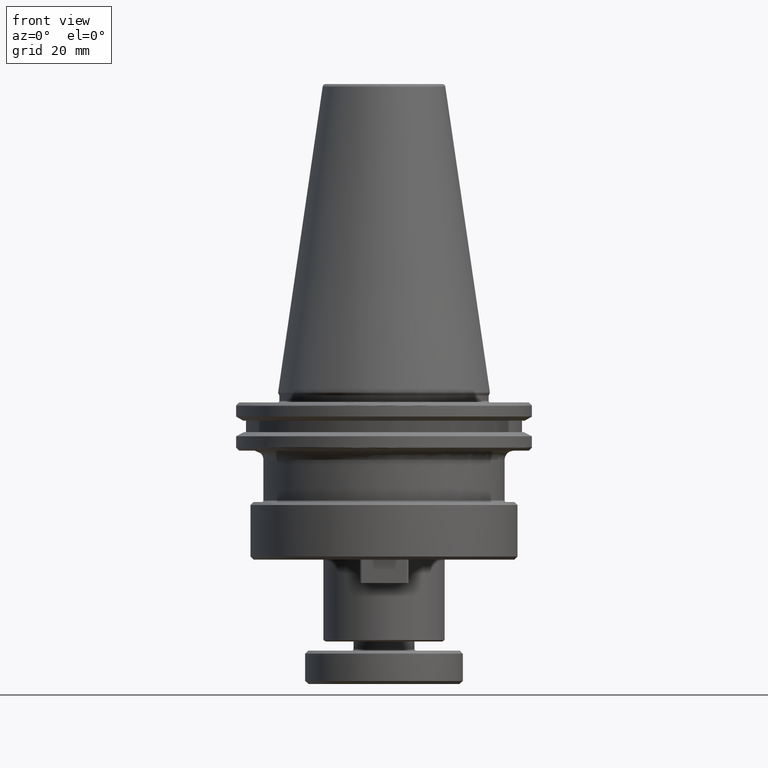
[diagram: clean part render]
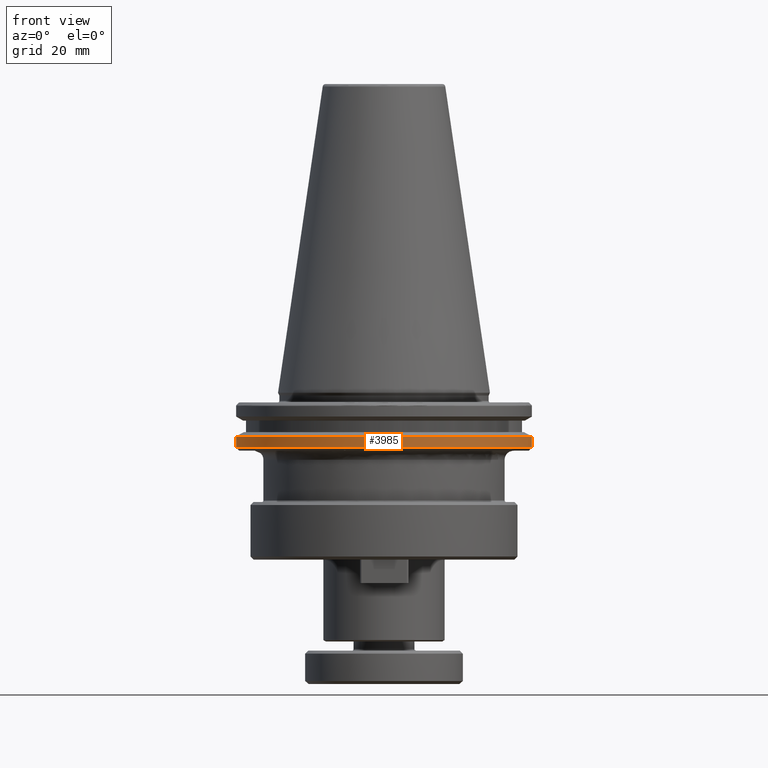
[diagram: same view with one face highlighted and labeled with its STEP entity id]
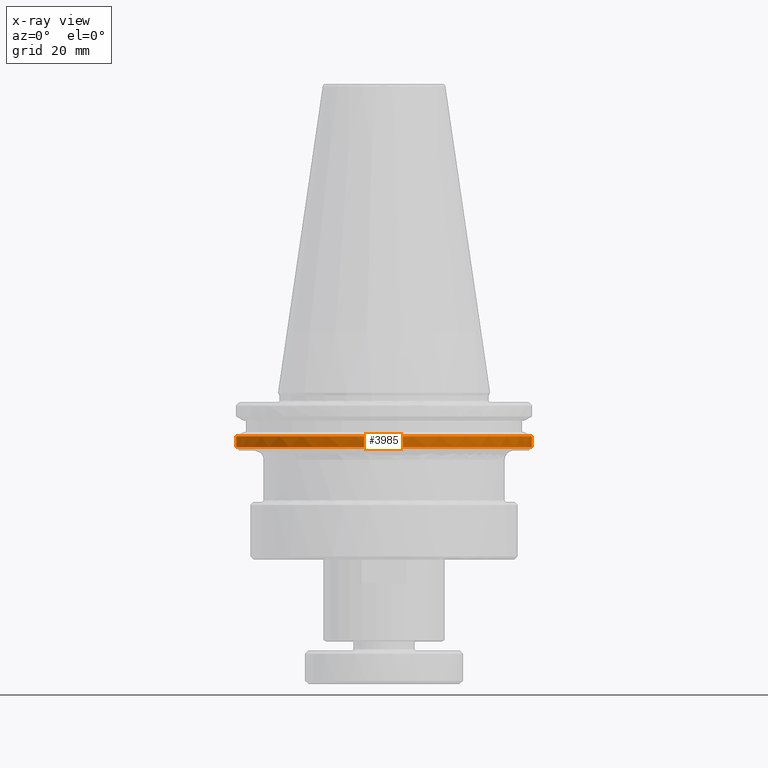
[diagram: x-ray of the same camera — body ghosted, the highlighted face saturated]
A machine part, front view. The second image highlights one B-rep face of the part: STEP entity #3985.
The next image is the same camera in x-ray: the body ghosted, the highlighted face saturated — about 0% of this face is hidden behind the body in this view.
In plain terms, the highlighted cylindrical surface (partial cylindrical patch) has radius 48.75 mm, axis along (0, 0, 1).
Its self-contained STEP definition (entity closure, byte-faithful):
#45 = CARTESIAN_POINT ( 'NONE',  ( 0.0000000000000000000, 0.0000000000000000000, -14.34759526419165900 ) ) ;
#61 = ORIENTED_EDGE ( 'NONE', *, *, #1311, .T. ) ;
#291 = CARTESIAN_POINT ( 'NONE',  ( 0.0000000000000000000, 0.0000000000000000000, -17.93431457505076300 ) ) ;
#308 = EDGE_CURVE ( 'NONE', #2898, #4080, #3354, .T. ) ;
#311 = AXIS2_PLACEMENT_3D ( 'NONE', #291, #365, #4728 ) ;
#357 = ORIENTED_EDGE ( 'NONE', *, *, #782, .F. ) ;
#365 = DIRECTION ( 'NONE',  ( 0.0000000000000000000, 0.0000000000000000000, 1.000000000000000000 ) ) ;
#401 = DIRECTION ( 'NONE',  ( 0.0000000000000000000, 0.0000000000000000000, 1.000000000000000000 ) ) ;
#699 = EDGE_CURVE ( 'NONE', #3615, #3207, #3245, .T. ) ;
#754 = CARTESIAN_POINT ( 'NONE',  ( -48.75000000000000000, 5.970153145843347100E-015, -17.93431457505076300 ) ) ;
#782 = EDGE_CURVE ( 'NONE', #4080, #3830, #4098, .T. ) ;
#882 = EDGE_CURVE ( 'NONE', #3207, #3188, #4361, .T. ) ;
#970 = AXIS2_PLACEMENT_3D ( 'NONE', #3433, #2746, #3072 ) ;
#1113 = ORIENTED_EDGE ( 'NONE', *, *, #882, .T. ) ;
#1158 = AXIS2_PLACEMENT_3D ( 'NONE', #2724, #1834, #1839 ) ;
#1311 = EDGE_CURVE ( 'NONE', #3188, #3830, #4879, .T. ) ;
#1437 = DIRECTION ( 'NONE',  ( 1.000000000000000000, 0.0000000000000000000, 0.0000000000000000000 ) ) ;
#1464 = CARTESIAN_POINT ( 'NONE',  ( 48.75000000000000000, 0.0000000000000000000, -14.34759526419165900 ) ) ;
#1680 = VECTOR ( 'NONE', #401, 1000.000000000000000 ) ;
#1742 = ORIENTED_EDGE ( 'NONE', *, *, #699, .T. ) ;
#1834 = DIRECTION ( 'NONE',  ( -0.0000000000000000000, -0.0000000000000000000, 1.000000000000000000 ) ) ;
#1839 = DIRECTION ( 'NONE',  ( -1.000000000000000000, 0.0000000000000000000, 0.0000000000000000000 ) ) ;
#1936 = CIRCLE ( 'NONE', #2648, 48.75000000000000000 ) ;
#1986 = CYLINDRICAL_SURFACE ( 'NONE', #970, 48.75000000000000000 ) ;
#2257 = ORIENTED_EDGE ( 'NONE', *, *, #3039, .T. ) ;
#2443 = LINE ( 'NONE', #2476, #1680 ) ;
#2456 = DIRECTION ( 'NONE',  ( -1.000000000000000000, 0.0000000000000000000, 0.0000000000000000000 ) ) ;
#2476 = CARTESIAN_POINT ( 'NONE',  ( -48.75000000000000000, 5.970153145843347100E-015, 113.5216080541959500 ) ) ;
#2648 = AXIS2_PLACEMENT_3D ( 'NONE', #3052, #2668, #1437 ) ;
#2668 = DIRECTION ( 'NONE',  ( -0.0000000000000000000, -0.0000000000000000000, 1.000000000000000000 ) ) ;
#2724 = CARTESIAN_POINT ( 'NONE',  ( 0.0000000000000000000, 0.0000000000000000000, -14.34759526419165900 ) ) ;
#2746 = DIRECTION ( 'NONE',  ( 0.0000000000000000000, 0.0000000000000000000, 1.000000000000000000 ) ) ;
#2772 = VERTEX_POINT ( 'NONE', #754 ) ;
#2836 = DIRECTION ( 'NONE',  ( -0.0000000000000000000, -0.0000000000000000000, 1.000000000000000000 ) ) ;
#2898 = VERTEX_POINT ( 'NONE', #4046 ) ;
#2927 = EDGE_LOOP ( 'NONE', ( #3376, #2257, #1742, #1113, #61, #357, #3434 ) ) ;
#3039 = EDGE_CURVE ( 'NONE', #2772, #3615, #1936, .T. ) ;
#3041 = AXIS2_PLACEMENT_3D ( 'NONE', #45, #2836, #2456 ) ;
#3052 = CARTESIAN_POINT ( 'NONE',  ( 0.0000000000000000000, 0.0000000000000000000, -17.93431457505076300 ) ) ;
#3072 = DIRECTION ( 'NONE',  ( 1.000000000000000000, 0.0000000000000000000, 0.0000000000000000000 ) ) ;
#3188 = VERTEX_POINT ( 'NONE', #4921 ) ;
#3207 = VERTEX_POINT ( 'NONE', #3526 ) ;
#3245 = CIRCLE ( 'NONE', #311, 48.75000000000000000 ) ;
#3303 = EDGE_CURVE ( 'NONE', #2772, #2898, #2443, .T. ) ;
#3354 = CIRCLE ( 'NONE', #1158, 48.75000000000000000 ) ;
#3376 = ORIENTED_EDGE ( 'NONE', *, *, #3303, .F. ) ;
#3433 = CARTESIAN_POINT ( 'NONE',  ( 0.0000000000000000000, 0.0000000000000000000, 113.5216080541959500 ) ) ;
#3434 = ORIENTED_EDGE ( 'NONE', *, *, #308, .F. ) ;
#3526 = CARTESIAN_POINT ( 'NONE',  ( 46.87302845420869300, -13.39707817141268500, -17.93431457505076300 ) ) ;
#3537 = DIRECTION ( 'NONE',  ( 0.0000000000000000000, 0.0000000000000000000, 1.000000000000000000 ) ) ;
#3615 = VERTEX_POINT ( 'NONE', #4865 ) ;
#3830 = VERTEX_POINT ( 'NONE', #1464 ) ;
#3838 = FACE_OUTER_BOUND ( 'NONE', #2927, .T. ) ;
#3985 = ADVANCED_FACE ( 'NONE', ( #3838 ), #1986, .T. ) ;
#4046 = CARTESIAN_POINT ( 'NONE',  ( -48.75000000000000000, 5.970153145843347100E-015, -14.34759526419165900 ) ) ;
#4080 = VERTEX_POINT ( 'NONE', #4568 ) ;
#4096 = CARTESIAN_POINT ( 'NONE',  ( 48.75000000000000000, 0.0000000000000000000, 113.5216080541959500 ) ) ;
#4098 = CIRCLE ( 'NONE', #3041, 48.75000000000000000 ) ;
#4361 = CIRCLE ( 'NONE', #4901, 48.75000000000000000 ) ;
#4568 = CARTESIAN_POINT ( 'NONE',  ( 5.970153145843347100E-015, -48.75000000000000000, -14.34759526419165900 ) ) ;
#4728 = DIRECTION ( 'NONE',  ( 1.000000000000000000, 0.0000000000000000000, 0.0000000000000000000 ) ) ;
#4865 = CARTESIAN_POINT ( 'NONE',  ( -46.83796378645138200, -13.51915856623735700, -17.93431457505076300 ) ) ;
#4879 = LINE ( 'NONE', #4096, #4937 ) ;
#4901 = AXIS2_PLACEMENT_3D ( 'NONE', #4948, #4931, #4930 ) ;
#4921 = CARTESIAN_POINT ( 'NONE',  ( 48.75000000000000000, 0.0000000000000000000, -17.93431457505076300 ) ) ;
#4930 = DIRECTION ( 'NONE',  ( 1.000000000000000000, 0.0000000000000000000, 0.0000000000000000000 ) ) ;
#4931 = DIRECTION ( 'NONE',  ( -0.0000000000000000000, -0.0000000000000000000, 1.000000000000000000 ) ) ;
#4937 = VECTOR ( 'NONE', #3537, 1000.000000000000000 ) ;
#4948 = CARTESIAN_POINT ( 'NONE',  ( 0.0000000000000000000, 0.0000000000000000000, -17.93431457505076300 ) ) ;